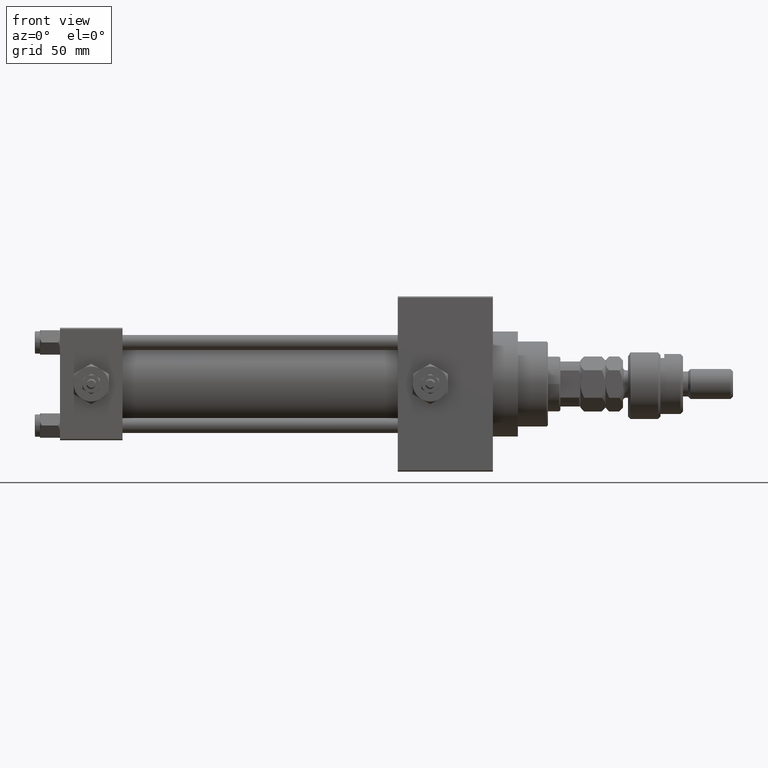
[diagram: clean part render]
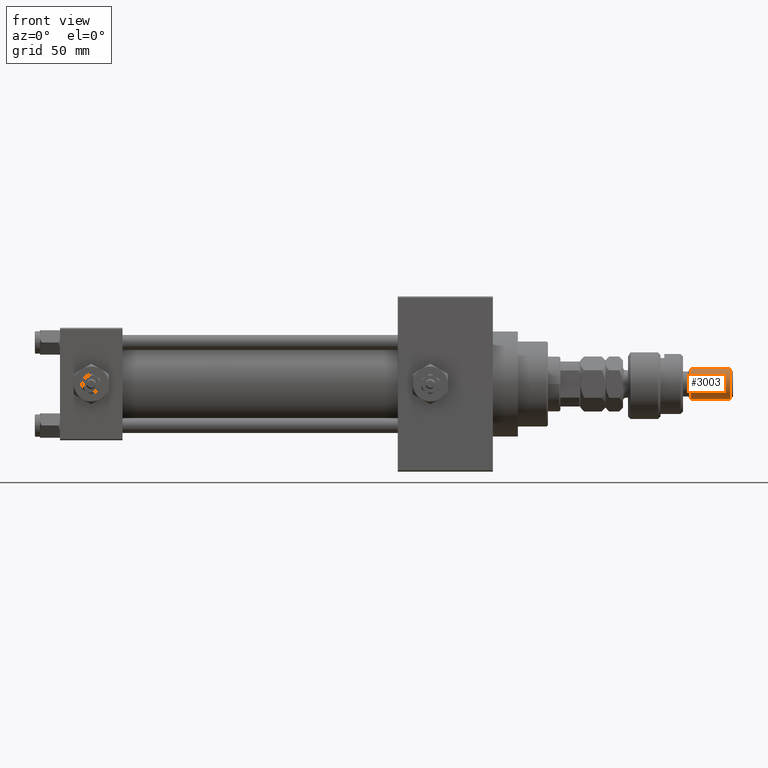
[diagram: same view with one face highlighted and labeled with its STEP entity id]
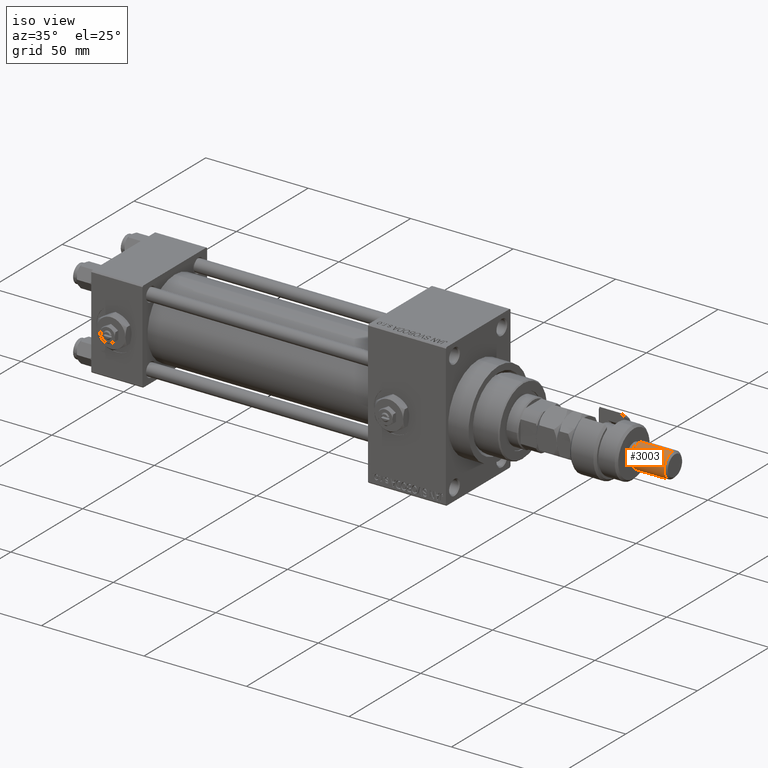
[diagram: same view with one face highlighted and labeled with its STEP entity id]
A machine part, front view. The second image highlights one B-rep face of the part: STEP entity #3003.
A second angle (iso view) of the same face is appended — the face is thin or edge-on in the first view.
In plain terms, the highlighted cylindrical surface (edge-blend (fillet) strip) has radius 6 mm, axis along (-1, -0, 0).
Its self-contained STEP definition (entity closure, byte-faithful):
#3003 = ADVANCED_FACE ( 'NONE', ( #45328 ), #5135, .T. ) ;
#3316 = VERTEX_POINT ( 'NONE', #4829 ) ;
#3472 = DIRECTION ( 'NONE',  ( 1.000000000000000000, 0.000000000000000000, 0.000000000000000000 ) ) ;
#3713 = VERTEX_POINT ( 'NONE', #10805 ) ;
#4829 = CARTESIAN_POINT ( 'NONE',  ( -6.000000000000000888, 0.000000000000000000, 24.99999999999999645 ) ) ;
#5082 = CARTESIAN_POINT ( 'NONE',  ( -6.000000000000000888, 0.000000000000000000, 41.99999999999999289 ) ) ;
#5135 = CYLINDRICAL_SURFACE ( 'NONE', #36419, 6.000000000000000888 ) ;
#10666 = CARTESIAN_POINT ( 'NONE',  ( 0.000000000000000000, 0.000000000000000000, 24.99999999999999645 ) ) ;
#10805 = CARTESIAN_POINT ( 'NONE',  ( -6.000000000000000888, 0.000000000000000000, 40.99999999999997868 ) ) ;
#11271 = CARTESIAN_POINT ( 'NONE',  ( 6.000000000000000888, 7.347880794884120722E-16, 41.99999999999999289 ) ) ;
#11562 = VECTOR ( 'NONE', #49475, 1000.000000000000000 ) ;
#12160 = DIRECTION ( 'NONE',  ( -0.000000000000000000, -0.000000000000000000, 1.000000000000000000 ) ) ;
#12300 = DIRECTION ( 'NONE',  ( 1.000000000000000000, 0.000000000000000000, 0.000000000000000000 ) ) ;
#12538 = VERTEX_POINT ( 'NONE', #40944 ) ;
#15437 = CIRCLE ( 'NONE', #28861, 6.000000000000000888 ) ;
#15683 = ORIENTED_EDGE ( 'NONE', *, *, #40639, .T. ) ;
#20687 = DIRECTION ( 'NONE',  ( 0.000000000000000000, 0.000000000000000000, -1.000000000000000000 ) ) ;
#20934 = CARTESIAN_POINT ( 'NONE',  ( 0.000000000000000000, 0.000000000000000000, 41.99999999999999289 ) ) ;
#21159 = ORIENTED_EDGE ( 'NONE', *, *, #34476, .T. ) ;
#21448 = DIRECTION ( 'NONE',  ( -1.000000000000000000, 0.000000000000000000, 0.000000000000000000 ) ) ;
#25097 = LINE ( 'NONE', #5082, #11562 ) ;
#28861 = AXIS2_PLACEMENT_3D ( 'NONE', #32754, #20687, #12300 ) ;
#32308 = EDGE_CURVE ( 'NONE', #12538, #35571, #51170, .T. ) ;
#32754 = CARTESIAN_POINT ( 'NONE',  ( 0.000000000000000000, 0.000000000000000000, 40.99999999999997868 ) ) ;
#34476 = EDGE_CURVE ( 'NONE', #3316, #35571, #49067, .T. ) ;
#35416 = DIRECTION ( 'NONE',  ( -0.000000000000000000, -0.000000000000000000, -1.000000000000000000 ) ) ;
#35571 = VERTEX_POINT ( 'NONE', #44501 ) ;
#35645 = AXIS2_PLACEMENT_3D ( 'NONE', #10666, #12160, #3472 ) ;
#36419 = AXIS2_PLACEMENT_3D ( 'NONE', #20934, #41383, #21448 ) ;
#39731 = EDGE_CURVE ( 'NONE', #3713, #3316, #25097, .T. ) ;
#40639 = EDGE_CURVE ( 'NONE', #12538, #3713, #15437, .T. ) ;
#40944 = CARTESIAN_POINT ( 'NONE',  ( 6.000000000000000888, 7.347880794884120722E-16, 40.99999999999997868 ) ) ;
#41383 = DIRECTION ( 'NONE',  ( -0.000000000000000000, -0.000000000000000000, -1.000000000000000000 ) ) ;
#44501 = CARTESIAN_POINT ( 'NONE',  ( 6.000000000000000888, 7.347880794884120722E-16, 24.99999999999999645 ) ) ;
#44678 = ORIENTED_EDGE ( 'NONE', *, *, #39731, .T. ) ;
#45328 = FACE_OUTER_BOUND ( 'NONE', #49470, .T. ) ;
#49067 = CIRCLE ( 'NONE', #35645, 6.000000000000000888 ) ;
#49470 = EDGE_LOOP ( 'NONE', ( #49527, #15683, #44678, #21159 ) ) ;
#49475 = DIRECTION ( 'NONE',  ( -0.000000000000000000, -0.000000000000000000, -1.000000000000000000 ) ) ;
#49527 = ORIENTED_EDGE ( 'NONE', *, *, #32308, .F. ) ;
#50751 = VECTOR ( 'NONE', #35416, 1000.000000000000000 ) ;
#51170 = LINE ( 'NONE', #11271, #50751 ) ;